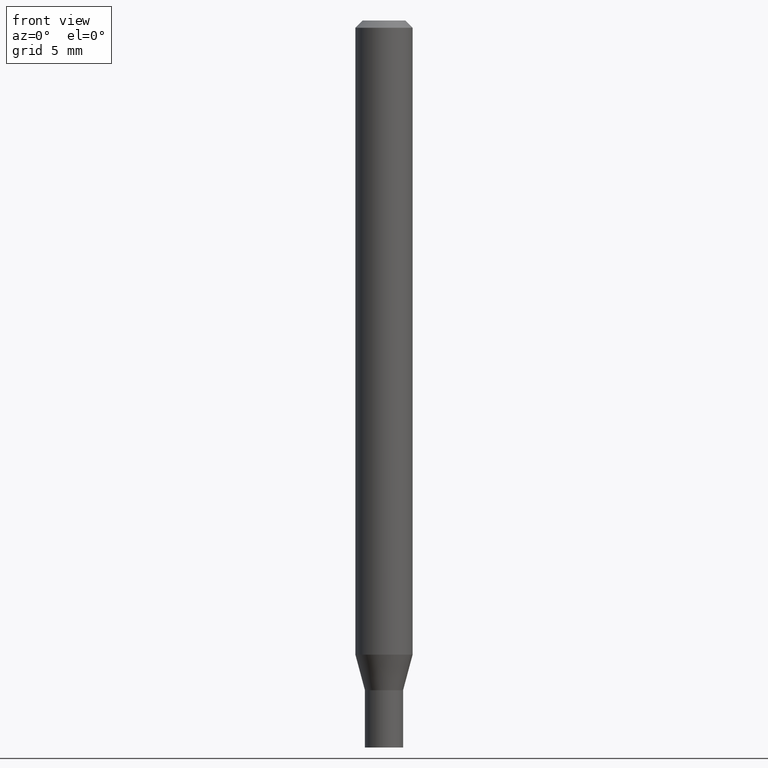
[diagram: clean part render]
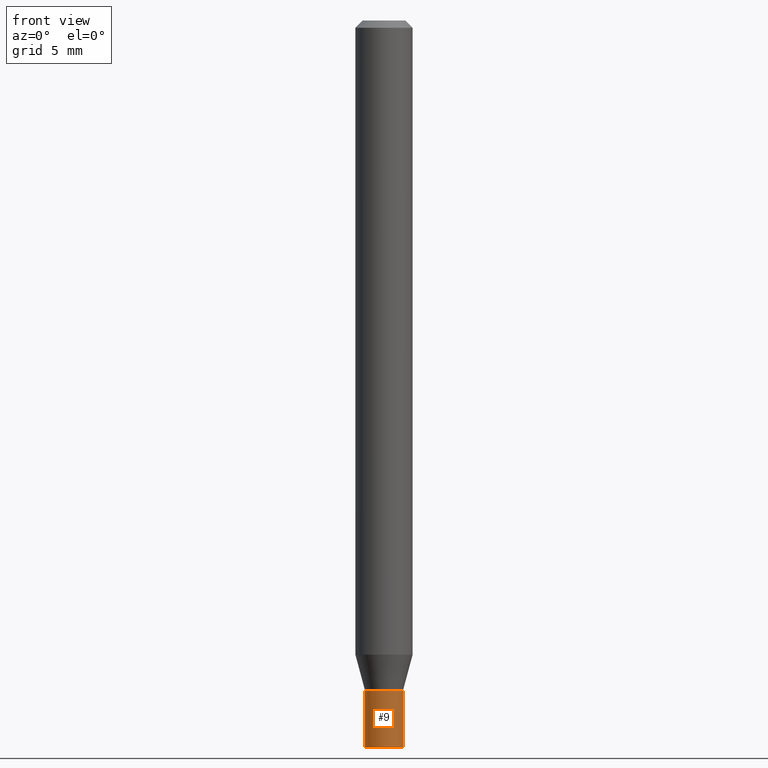
[diagram: same view with one face highlighted and labeled with its STEP entity id]
A machine part, front view. The second image highlights one B-rep face of the part: STEP entity #9.
In plain terms, the highlighted cylindrical surface (edge-blend (fillet) strip) has radius 0.9995 mm, axis along (-0, 0, 1).
Its self-contained STEP definition (entity closure, byte-faithful):
#9 = ADVANCED_FACE ( 'NONE', ( #128 ), #277, .T. ) ;
#15 = EDGE_CURVE ( 'NONE', #55, #379, #212, .T. ) ;
#18 = AXIS2_PLACEMENT_3D ( 'NONE', #88, #449, #452 ) ;
#30 = CIRCLE ( 'NONE', #150, 0.03935000000000000303 ) ;
#35 = DIRECTION ( 'NONE',  ( -2.445468806185136877E-29, 3.491481338843145188E-15, 1.000000000000000000 ) ) ;
#53 = VERTEX_POINT ( 'NONE', #126 ) ;
#54 = EDGE_LOOP ( 'NONE', ( #219, #439, #313, #351 ) ) ;
#55 = VERTEX_POINT ( 'NONE', #123 ) ;
#61 = DIRECTION ( 'NONE',  ( 1.000000000000000000, -6.982962677686266711E-15, 4.876176775795936353E-29 ) ) ;
#73 = EDGE_CURVE ( 'NONE', #53, #55, #231, .T. ) ;
#88 = CARTESIAN_POINT ( 'NONE',  ( 3.379393343267239894E-29, -4.824878062147343257E-15, -1.381900000000000128 ) ) ;
#100 = DIRECTION ( 'NONE',  ( 1.000000000000000000, -6.982962677686269077E-15, 0.000000000000000000 ) ) ;
#108 = EDGE_CURVE ( 'NONE', #253, #379, #355, .T. ) ;
#123 = CARTESIAN_POINT ( 'NONE',  ( -0.03935000000000000303, -4.751451468684432505E-15, -1.381900000000000128 ) ) ;
#126 = CARTESIAN_POINT ( 'NONE',  ( -0.03935000000000000303, -4.751451468684432505E-15, -1.500000000000000222 ) ) ;
#128 = FACE_OUTER_BOUND ( 'NONE', #54, .T. ) ;
#150 = AXIS2_PLACEMENT_3D ( 'NONE', #436, #430, #100 ) ;
#212 = CIRCLE ( 'NONE', #18, 0.03935000000000000303 ) ;
#219 = ORIENTED_EDGE ( 'NONE', *, *, #73, .F. ) ;
#231 = LINE ( 'NONE', #387, #299 ) ;
#237 = CARTESIAN_POINT ( 'NONE',  ( 0.03935000000000000303, -5.099657643514298173E-15, -1.381900000000000128 ) ) ;
#251 = EDGE_CURVE ( 'NONE', #53, #253, #30, .T. ) ;
#253 = VERTEX_POINT ( 'NONE', #396 ) ;
#277 = CYLINDRICAL_SURFACE ( 'NONE', #458, 0.03935000000000000303 ) ;
#290 = VECTOR ( 'NONE', #35, 39.37007874015748143 ) ;
#299 = VECTOR ( 'NONE', #345, 39.37007874015748143 ) ;
#313 = ORIENTED_EDGE ( 'NONE', *, *, #108, .T. ) ;
#343 = CARTESIAN_POINT ( 'NONE',  ( 0.000000000000000000, 0.000000000000000000, 0.000000000000000000 ) ) ;
#345 = DIRECTION ( 'NONE',  ( -2.445468806185136877E-29, 3.491481338843145188E-15, 1.000000000000000000 ) ) ;
#351 = ORIENTED_EDGE ( 'NONE', *, *, #15, .F. ) ;
#355 = LINE ( 'NONE', #404, #290 ) ;
#379 = VERTEX_POINT ( 'NONE', #237 ) ;
#387 = CARTESIAN_POINT ( 'NONE',  ( -0.03935000000000000303, 2.795985665215994447E-16, -1.935600958015305291E-30 ) ) ;
#396 = CARTESIAN_POINT ( 'NONE',  ( 0.03935000000000000303, -5.512001589631673094E-15, -1.500000000000000222 ) ) ;
#404 = CARTESIAN_POINT ( 'NONE',  ( 0.03935000000000000303, -2.747795813669546211E-16, 1.918775561275701074E-30 ) ) ;
#420 = DIRECTION ( 'NONE',  ( -2.445468806185136597E-29, 3.491481338843145583E-15, 1.000000000000000000 ) ) ;
#430 = DIRECTION ( 'NONE',  ( -2.445468806185136597E-29, 3.491481338843145583E-15, 1.000000000000000000 ) ) ;
#436 = CARTESIAN_POINT ( 'NONE',  ( 3.668203209277704895E-29, -5.237222008264718177E-15, -1.500000000000000222 ) ) ;
#439 = ORIENTED_EDGE ( 'NONE', *, *, #251, .T. ) ;
#449 = DIRECTION ( 'NONE',  ( -2.445468806185136597E-29, 3.491481338843145583E-15, 1.000000000000000000 ) ) ;
#452 = DIRECTION ( 'NONE',  ( 1.000000000000000000, -6.982962677686269077E-15, 0.000000000000000000 ) ) ;
#458 = AXIS2_PLACEMENT_3D ( 'NONE', #343, #420, #61 ) ;